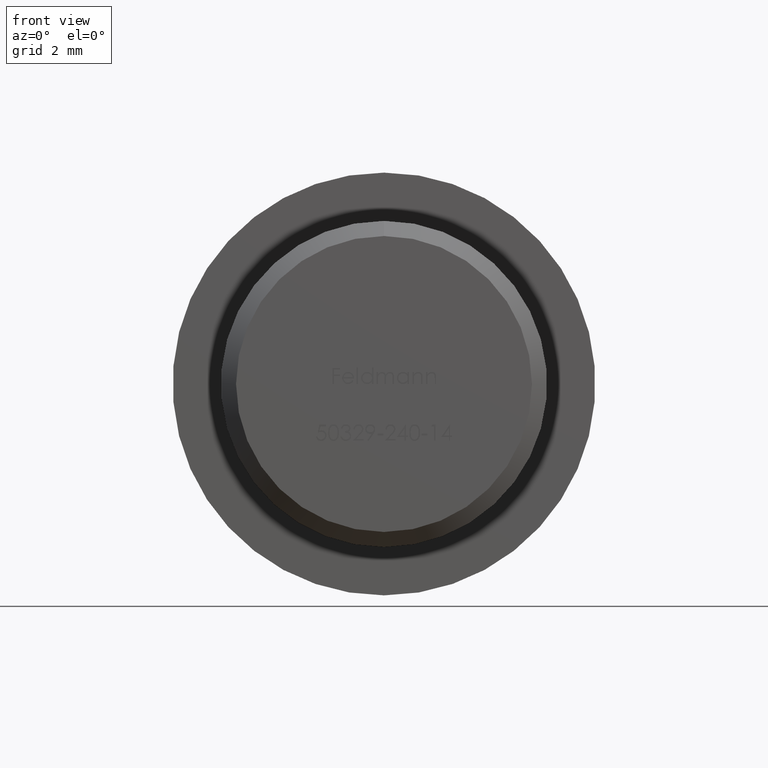
[diagram: clean part render]
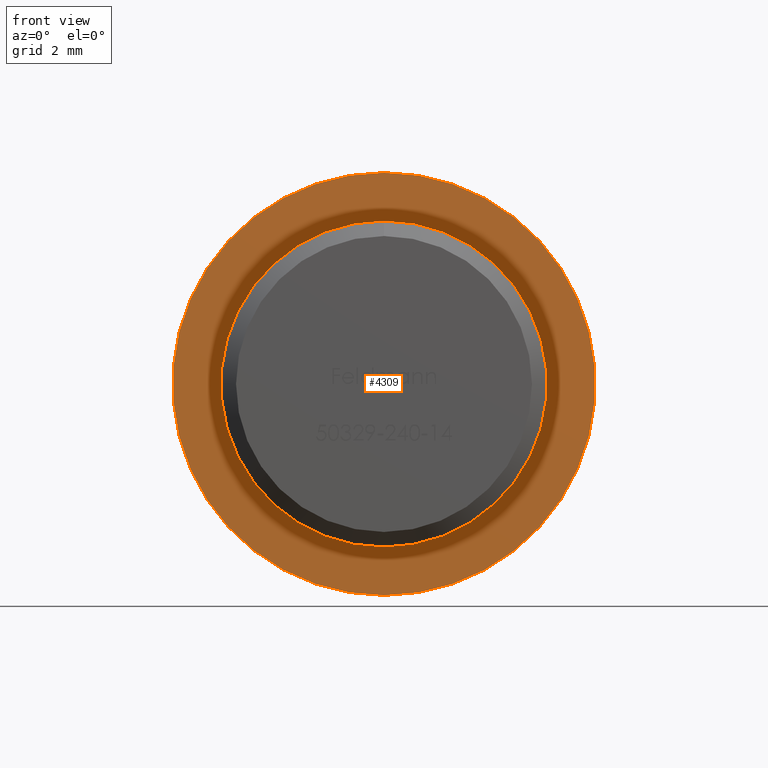
[diagram: same view with one face highlighted and labeled with its STEP entity id]
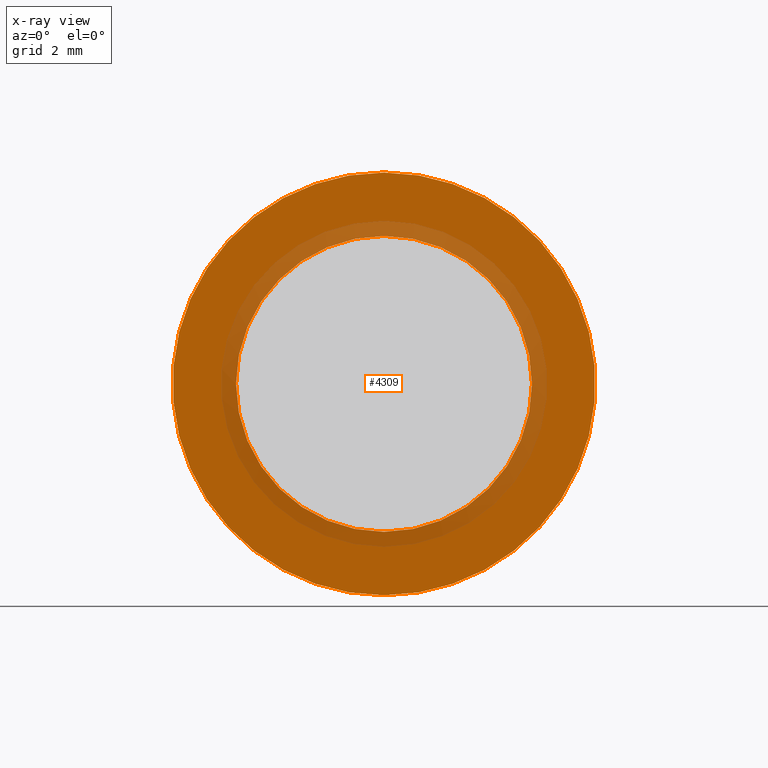
[diagram: x-ray of the same camera — body ghosted, the highlighted face saturated]
A machine part, front view. The second image highlights one B-rep face of the part: STEP entity #4309.
The next image is the same camera in x-ray: the body ghosted, the highlighted face saturated — about 21% of this face is hidden behind the body in this view.
In plain terms, the highlighted planar face has unit normal (0, -1, -0).
Its self-contained STEP definition (entity closure, byte-faithful):
#665 = CARTESIAN_POINT ( 'NONE',  ( 0.0000000000000000000, 10.00000000000000000, 0.0000000000000000000 ) ) ;
#847 = VERTEX_POINT ( 'NONE', #2561 ) ;
#1115 = CARTESIAN_POINT ( 'NONE',  ( 0.0000000000000000000, 10.00000000000000000, 4.899999999999999500 ) ) ;
#2203 = DIRECTION ( 'NONE',  ( -0.0000000000000000000, 1.000000000000000000, -0.0000000000000000000 ) ) ;
#2561 = CARTESIAN_POINT ( 'NONE',  ( 6.000769315822030700E-016, 10.00000000000000000, -4.899999999999999500 ) ) ;
#3923 = AXIS2_PLACEMENT_3D ( 'NONE', #13368, #2203, #12176 ) ;
#4256 = DIRECTION ( 'NONE',  ( 0.0000000000000000000, -1.000000000000000000, -0.0000000000000000000 ) ) ;
#4309 = ADVANCED_FACE ( 'NONE', ( #11646, #4937 ), #13120, .T. ) ;
#4918 = DIRECTION ( 'NONE',  ( -0.0000000000000000000, 1.000000000000000000, -0.0000000000000000000 ) ) ;
#4937 = FACE_BOUND ( 'NONE', #13378, .T. ) ;
#5659 = DIRECTION ( 'NONE',  ( 0.0000000000000000000, 0.0000000000000000000, -1.000000000000000000 ) ) ;
#5903 = EDGE_CURVE ( 'NONE', #9234, #11961, #6955, .T. ) ;
#5945 = AXIS2_PLACEMENT_3D ( 'NONE', #11053, #12125, #5659 ) ;
#5971 = VERTEX_POINT ( 'NONE', #1115 ) ;
#6661 = ORIENTED_EDGE ( 'NONE', *, *, #7253, .T. ) ;
#6955 = CIRCLE ( 'NONE', #5945, 7.000000000000000000 ) ;
#7253 = EDGE_CURVE ( 'NONE', #5971, #847, #13329, .T. ) ;
#7641 = EDGE_CURVE ( 'NONE', #847, #5971, #14336, .T. ) ;
#7690 = AXIS2_PLACEMENT_3D ( 'NONE', #9935, #4256, #10902 ) ;
#8237 = DIRECTION ( 'NONE',  ( 0.0000000000000000000, 0.0000000000000000000, 1.000000000000000000 ) ) ;
#8574 = ORIENTED_EDGE ( 'NONE', *, *, #5903, .T. ) ;
#8618 = EDGE_LOOP ( 'NONE', ( #10452, #8574 ) ) ;
#8852 = AXIS2_PLACEMENT_3D ( 'NONE', #11901, #9816, #13041 ) ;
#9234 = VERTEX_POINT ( 'NONE', #11727 ) ;
#9347 = ORIENTED_EDGE ( 'NONE', *, *, #7641, .T. ) ;
#9816 = DIRECTION ( 'NONE',  ( -0.0000000000000000000, -1.000000000000000000, -0.0000000000000000000 ) ) ;
#9837 = AXIS2_PLACEMENT_3D ( 'NONE', #665, #4918, #8237 ) ;
#9935 = CARTESIAN_POINT ( 'NONE',  ( 7.000000000000000000, 10.00000000000000200, 0.0000000000000000000 ) ) ;
#10014 = CIRCLE ( 'NONE', #8852, 7.000000000000000000 ) ;
#10288 = CARTESIAN_POINT ( 'NONE',  ( 0.0000000000000000000, 10.00000000000000200, -7.000000000000000000 ) ) ;
#10452 = ORIENTED_EDGE ( 'NONE', *, *, #11318, .T. ) ;
#10902 = DIRECTION ( 'NONE',  ( 0.0000000000000000000, 0.0000000000000000000, -1.000000000000000000 ) ) ;
#11053 = CARTESIAN_POINT ( 'NONE',  ( 0.0000000000000000000, 10.00000000000000200, 0.0000000000000000000 ) ) ;
#11318 = EDGE_CURVE ( 'NONE', #11961, #9234, #10014, .T. ) ;
#11646 = FACE_OUTER_BOUND ( 'NONE', #8618, .T. ) ;
#11727 = CARTESIAN_POINT ( 'NONE',  ( 8.572527594031473200E-016, 10.00000000000000200, 7.000000000000000000 ) ) ;
#11901 = CARTESIAN_POINT ( 'NONE',  ( 0.0000000000000000000, 10.00000000000000200, 0.0000000000000000000 ) ) ;
#11961 = VERTEX_POINT ( 'NONE', #10288 ) ;
#12125 = DIRECTION ( 'NONE',  ( -0.0000000000000000000, -1.000000000000000000, -0.0000000000000000000 ) ) ;
#12176 = DIRECTION ( 'NONE',  ( 0.0000000000000000000, 0.0000000000000000000, 1.000000000000000000 ) ) ;
#13041 = DIRECTION ( 'NONE',  ( 0.0000000000000000000, 0.0000000000000000000, -1.000000000000000000 ) ) ;
#13120 = PLANE ( 'NONE',  #7690 ) ;
#13329 = CIRCLE ( 'NONE', #9837, 4.899999999999999500 ) ;
#13368 = CARTESIAN_POINT ( 'NONE',  ( 0.0000000000000000000, 10.00000000000000000, 0.0000000000000000000 ) ) ;
#13378 = EDGE_LOOP ( 'NONE', ( #6661, #9347 ) ) ;
#14336 = CIRCLE ( 'NONE', #3923, 4.899999999999999500 ) ;